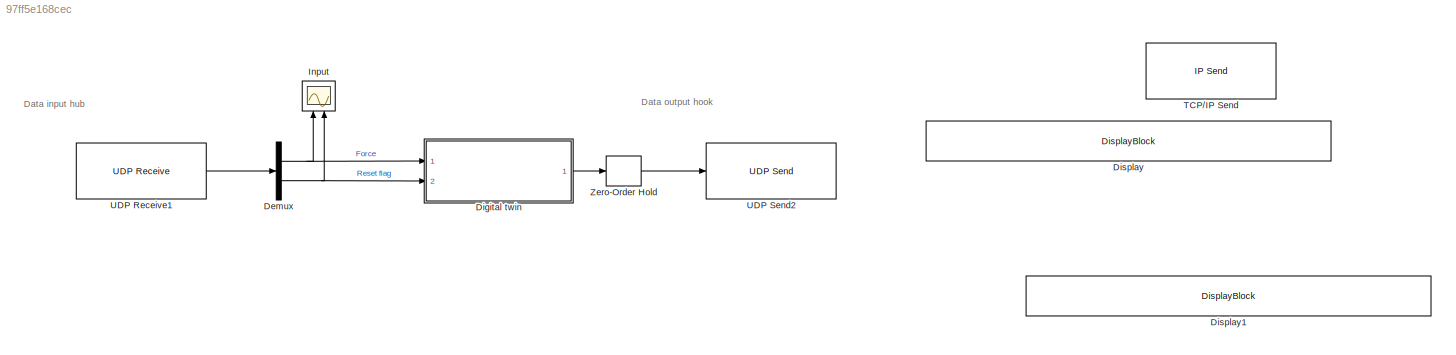
MODEL slx_97ff5e168cec
KIND model
CONFIG AbsTol = 1e-6
CONFIG EnableMultiTasking = off
CONFIG FixedStep = 0.001
CONFIG MaxStep = auto
CONFIG MinStep = auto
CONFIG RelTol = 1e-5
CONFIG SampleTimeConstraint = Unconstrained
CONFIG SolverName = ode45
CONFIG StartTime = 0.0
CONFIG StopTime = inf
WORKSPACE source: mxarray member
WORKSPACE I = 0
WORKSPACE c = 0
WORKSPACE g = 9.81
WORKSPACE l = 1
WORKSPACE m = 1
WORKSPACE max_tau = 2
WORKSPACE theta0 = 0
WORKSPACE theta_dot0 = 0
BLOCK [Demux] Demux
  Outputs = 2
  Ports = [1, 2]
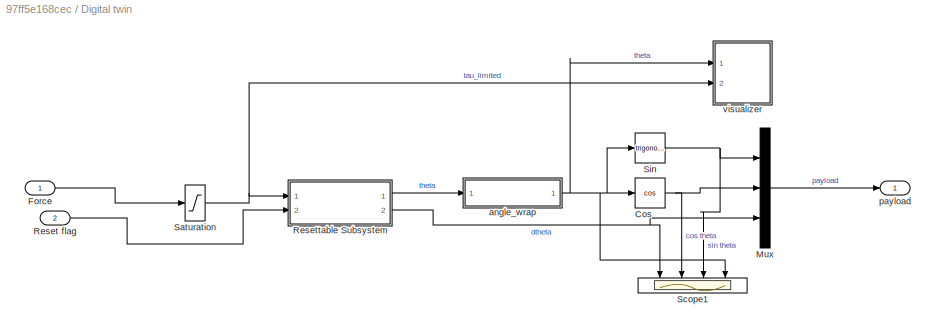
BLOCK [SubSystem] Digital twin
  Ports = [2, 1]
  RequestExecContextInheritance = off
BLOCK [Trigonometry] Digital twin/Cos
  Operator = cos
  Ports = [1, 1]
BLOCK [Inport] Digital twin/Force
BLOCK [Mux] Digital twin/Mux
  DisplayOption = bar
  Inputs = 3
  Ports = [3, 1]
BLOCK [Inport] Digital twin/Reset flag
  Port = 2
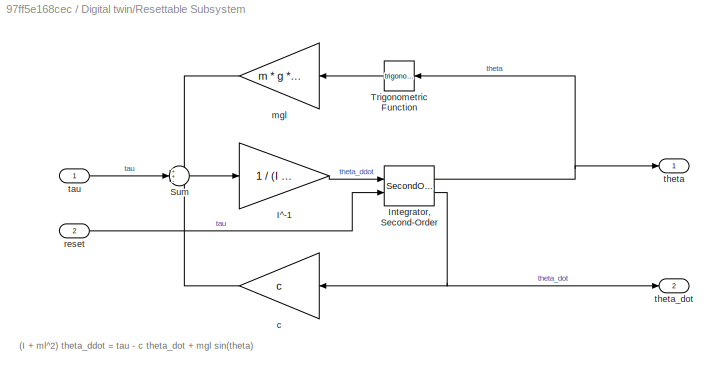
BLOCK [SubSystem] Digital twin/Resettable Subsystem
  Ports = [2, 2]
  RequestExecContextInheritance = off
  TreatAsAtomicUnit = on
BLOCK [Gain] Digital twin/Resettable Subsystem/I^-1
  Gain = 1 / (I + m * l^2)
BLOCK [SecondOrderIntegrator] Digital twin/Resettable Subsystem/Integrator, Second-Order
  ExternalReset = rising
  ICDXDT = 0
  ICX = pi
  LowerLimitX = 0
  Ports = [2, 2]
  StateNameDXDT = 'theta_dot'
  StateNameX = 'theta'
  UpperLimitX = 1
BLOCK [Sum] Digital twin/Resettable Subsystem/Sum
  Inputs = ++-
  Ports = [3, 1]
BLOCK [Trigonometry] Digital twin/Resettable Subsystem/Trigonometric Function
  NameLocation = top
  Ports = [1, 1]
BLOCK [Gain] Digital twin/Resettable Subsystem/c
  Gain = c
  NameLocation = top
BLOCK [Gain] Digital twin/Resettable Subsystem/mgl
  Gain = m * g * l
  NameLocation = top
BLOCK [Inport] Digital twin/Resettable Subsystem/reset
  Port = 2
BLOCK [Inport] Digital twin/Resettable Subsystem/tau
BLOCK [Outport] Digital twin/Resettable Subsystem/theta
  VectorParamsAs1DForOutWhenUnconnected = off
BLOCK [Outport] Digital twin/Resettable Subsystem/theta_dot
  Port = 2
  VectorParamsAs1DForOutWhenUnconnected = off
BLOCK [Saturate] Digital twin/Saturation
  LowerLimit = -2
  UpperLimit = 2
BLOCK [Scope] Digital twin/Scope1
  Floating = off
  NameLocation = left
  NumInputPorts = 4
  Ports = [4]
  ScopeSpecificationString = Simulink.scopes.TimeScopeBlockCfg('CurrentConfiguration', extmgr.ConfigurationSet(extmgr.Configuration('Core','General UI',true),extmgr.Configuration('Core','Source UI',true),extmgr.Configuration('Sources','WiredSimulink',true,'DataLoggingVariableName','ScopeData2'),extmgr.Configuration('Visuals','Time Domain',true,'SerializedDisplays',{struct('MinYLimReal','-1.24154','MaxYLimReal','0.98434','YLab...<+3503ch>
BLOCK [Trigonometry] Digital twin/Sin
  Ports = [1, 1]
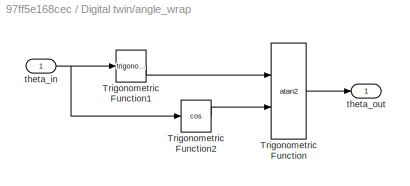
BLOCK [SubSystem] Digital twin/angle_wrap
  Ports = [1, 1]
  RequestExecContextInheritance = off
BLOCK [Trigonometry] Digital twin/angle_wrap/Trigonometric Function
  Operator = atan2
  Ports = [2, 1]
BLOCK [Trigonometry] Digital twin/angle_wrap/Trigonometric Function1
  Ports = [1, 1]
BLOCK [Trigonometry] Digital twin/angle_wrap/Trigonometric Function2
  Operator = cos
  Ports = [1, 1]
BLOCK [Inport] Digital twin/angle_wrap/theta_in
BLOCK [Outport] Digital twin/angle_wrap/theta_out
  VectorParamsAs1DForOutWhenUnconnected = off
BLOCK [Outport] Digital twin/payload
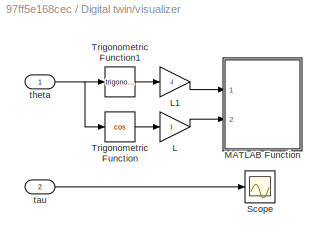
BLOCK [SubSystem] Digital twin/visualizer
  Ports = [2]
  RequestExecContextInheritance = off
BLOCK [Gain] Digital twin/visualizer/L
  Gain = l
BLOCK [Gain] Digital twin/visualizer/L1
  Gain = -l
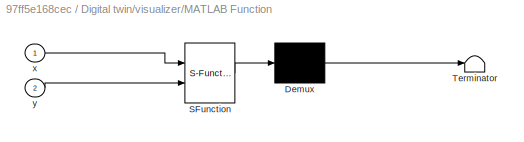
BLOCK [SubSystem] Digital twin/visualizer/MATLAB Function
  ErrorFcn = Stateflow.Translate.translate
  PermitHierarchicalResolution = ExplicitOnly
  Ports = [2]
  RequestExecContextInheritance = off
  SFBlockType = MATLAB Function
  TreatAsAtomicUnit = on
BLOCK [Demux] Digital twin/visualizer/MATLAB Function/ Demux 
  Outputs = 1
  Ports = [1, 1]
BLOCK [S-Function] Digital twin/visualizer/MATLAB Function/ SFunction 
  EnableBusSupport = on
  FunctionName = sf_sfun
  PortCounts = [2 1]
  Ports = [2, 1]
  SFcnIsStateOwnerBlock = off
  SFunctionDeploymentMode = off
  Tag = Stateflow S-Function 2
BLOCK [Terminator] Digital twin/visualizer/MATLAB Function/ Terminator 
BLOCK [Inport] Digital twin/visualizer/MATLAB Function/x
BLOCK [Inport] Digital twin/visualizer/MATLAB Function/y
  Port = 2
BLOCK [Scope] Digital twin/visualizer/Scope
  Floating = off
  NumInputPorts = 1
  Ports = [1]
  ScopeSpecificationString = Simulink.scopes.TimeScopeBlockCfg('CurrentConfiguration', extmgr.ConfigurationSet(extmgr.Configuration('Core','General UI',true),extmgr.Configuration('Core','Source UI',true),extmgr.Configuration('Sources','WiredSimulink',true),extmgr.Configuration('Visuals','Time Domain',true,'SerializedDisplays',{struct('MinYLimReal','-2.5','MaxYLimReal','2.5','YLabelReal','','MinYLimMag','0.00000','MaxYLimMag',...<+1373ch>
BLOCK [Trigonometry] Digital twin/visualizer/Trigonometric Function
  Operator = cos
  Ports = [1, 1]
BLOCK [Trigonometry] Digital twin/visualizer/Trigonometric Function1
  Ports = [1, 1]
BLOCK [Inport] Digital twin/visualizer/tau
  NameLocation = top
  Port = 2
BLOCK [Inport] Digital twin/visualizer/theta
  NameLocation = top
BLOCK [DisplayBlock] Display
  Format = short
  LabelPosition = Hide
  Transparency = 1
BLOCK [DisplayBlock] Display1
  Format = short
  LabelPosition = Hide
  Transparency = 1
BLOCK [Scope] Input
  Floating = off
  NameLocation = right
  NumInputPorts = 2
  Ports = [2]
  ScopeSpecificationString = Simulink.scopes.TimeScopeBlockCfg('CurrentConfiguration', extmgr.ConfigurationSet(extmgr.Configuration('Core','General UI',true),extmgr.Configuration('Core','Source UI',true),extmgr.Configuration('Sources','WiredSimulink',true),extmgr.Configuration('Visuals','Time Domain',true,'SerializedDisplays',{struct('MinYLimReal','-2.5','MaxYLimReal','2.5','YLabelReal','','MinYLimMag','0.00000','MaxYLimMag',...<+2077ch>
BLOCK [Reference] TCP//IP Send  REF=instrumentlib/TCP//IP Send
  Commented = on
  Ports = [1]
  SourceBlock = instrumentlib/TCP//IP Send
  SourceProductBaseCode = IC
  SourceType = TCP/IP Send
BLOCK [Reference] UDP Receive1  REF=instrumentlib/UDP Receive
  Ports = [0, 1]
  SourceBlock = instrumentlib/UDP Receive
  SourceProductBaseCode = IC
  SourceType = UDP Receive
BLOCK [Reference] UDP Send2  REF=instrumentlib/UDP Send
  Ports = [1]
  SourceBlock = instrumentlib/UDP Send
  SourceProductBaseCode = IC
  SourceType = UDP Send
BLOCK [ZeroOrderHold] Zero-Order Hold
  SampleTime = 0.05
ANNOTATION (root): Data input hub
ANNOTATION (root): Data output hook
ANNOTATION Digital twin/Resettable Subsystem: (I + ml^2) theta_ddot = tau - c theta_dot + mgl sin(theta)
NET Demux:1 -> Digital twin:1, Input:1
NET Demux:2 -> Digital twin:2, Input:2
NET Digital twin/Cos:1 -> Digital twin/Mux:2, Digital twin/Scope1:2
LINE Digital twin/Force:1 -> Digital twin/Saturation:1
LINE Digital twin/Mux:1 -> Digital twin/payload:1
LINE Digital twin/Reset flag:1 -> Digital twin/Resettable Subsystem:2
LINE Digital twin/Resettable Subsystem/I^-1:1 -> Digital twin/Resettable Subsystem/Integrator, Second-Order:1
NET Digital twin/Resettable Subsystem/Integrator, Second-Order:1 -> Digital twin/Resettable Subsystem/Trigonometric Function:1, Digital twin/Resettable Subsystem/theta:1
NET Digital twin/Resettable Subsystem/Integrator, Second-Order:2 -> Digital twin/Resettable Subsystem/c:1, Digital twin/Resettable Subsystem/theta_dot:1
LINE Digital twin/Resettable Subsystem/Sum:1 -> Digital twin/Resettable Subsystem/I^-1:1
LINE Digital twin/Resettable Subsystem/Trigonometric Function:1 -> Digital twin/Resettable Subsystem/mgl:1
LINE Digital twin/Resettable Subsystem/c:1 -> Digital twin/Resettable Subsystem/Sum:3
LINE Digital twin/Resettable Subsystem/mgl:1 -> Digital twin/Resettable Subsystem/Sum:1
LINE Digital twin/Resettable Subsystem/reset:1 -> Digital twin/Resettable Subsystem/Integrator, Second-Order:2
LINE Digital twin/Resettable Subsystem/tau:1 -> Digital twin/Resettable Subsystem/Sum:2
LINE Digital twin/Resettable Subsystem:1 -> Digital twin/angle_wrap:1
NET Digital twin/Resettable Subsystem:2 -> Digital twin/Mux:3, Digital twin/Scope1:1
NET Digital twin/Saturation:1 -> Digital twin/Resettable Subsystem:1, Digital twin/visualizer:2
NET Digital twin/Sin:1 -> Digital twin/Mux:1, Digital twin/Scope1:3
LINE Digital twin/angle_wrap/Trigonometric Function1:1 -> Digital twin/angle_wrap/Trigonometric Function:1
LINE Digital twin/angle_wrap/Trigonometric Function2:1 -> Digital twin/angle_wrap/Trigonometric Function:2
LINE Digital twin/angle_wrap/Trigonometric Function:1 -> Digital twin/angle_wrap/theta_out:1
NET Digital twin/angle_wrap/theta_in:1 -> Digital twin/angle_wrap/Trigonometric Function1:1, Digital twin/angle_wrap/Trigonometric Function2:1
NET Digital twin/angle_wrap:1 -> Digital twin/Cos:1, Digital twin/Scope1:4, Digital twin/Sin:1, Digital twin/visualizer:1
LINE Digital twin/visualizer/L1:1 -> Digital twin/visualizer/MATLAB Function:1
LINE Digital twin/visualizer/L:1 -> Digital twin/visualizer/MATLAB Function:2
LINE Digital twin/visualizer/Trigonometric Function1:1 -> Digital twin/visualizer/L1:1
LINE Digital twin/visualizer/Trigonometric Function:1 -> Digital twin/visualizer/L:1
LINE Digital twin/visualizer/tau:1 -> Digital twin/visualizer/Scope:1
NET Digital twin/visualizer/theta:1 -> Digital twin/visualizer/Trigonometric Function1:1, Digital twin/visualizer/Trigonometric Function:1
LINE Digital twin:1 -> Zero-Order Hold:1
LINE UDP Receive1:1 -> Demux:1
LINE Zero-Order Hold:1 -> UDP Send2:1
note: NET lines group one-source signal fan-out (src -> all destinations, sorted); 1:1 wires keep LINE
CHART Digital twin/visualizer/MATLAB Function states=1 transitions=1
  STATE_LABEL 'eML_blk_kernel()'
  STATE_LABEL "SCRIPT:\nfunction plotPend(x,y)\n% plot the simple pendulum\ncoder.extrinsic('rl.env.viz.plotSimplePendulum');\nrl.env.viz.plotSimplePendulum(x,y);\n"
CHART  states=0 transitions=0
